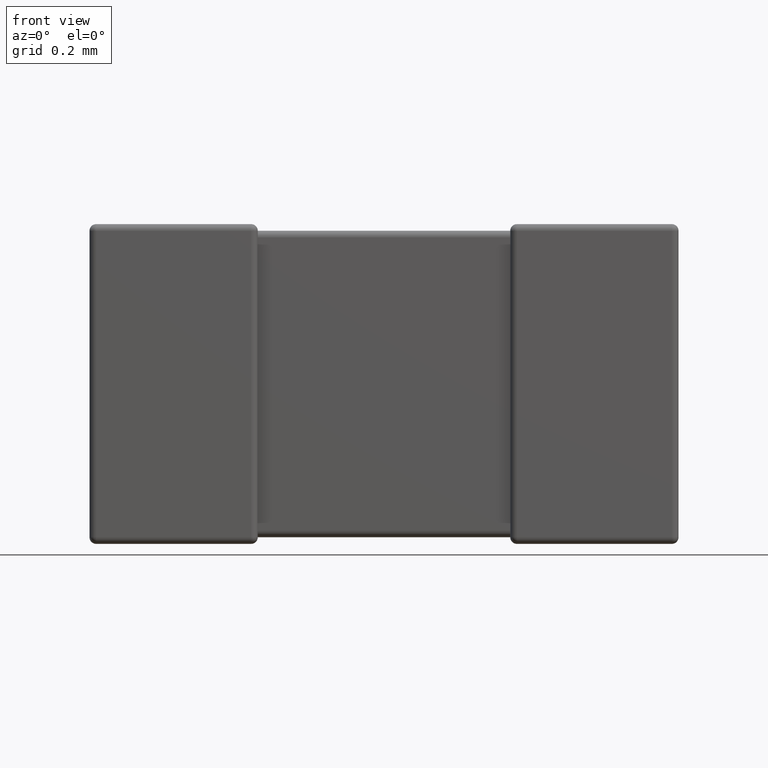
[diagram: clean part render]
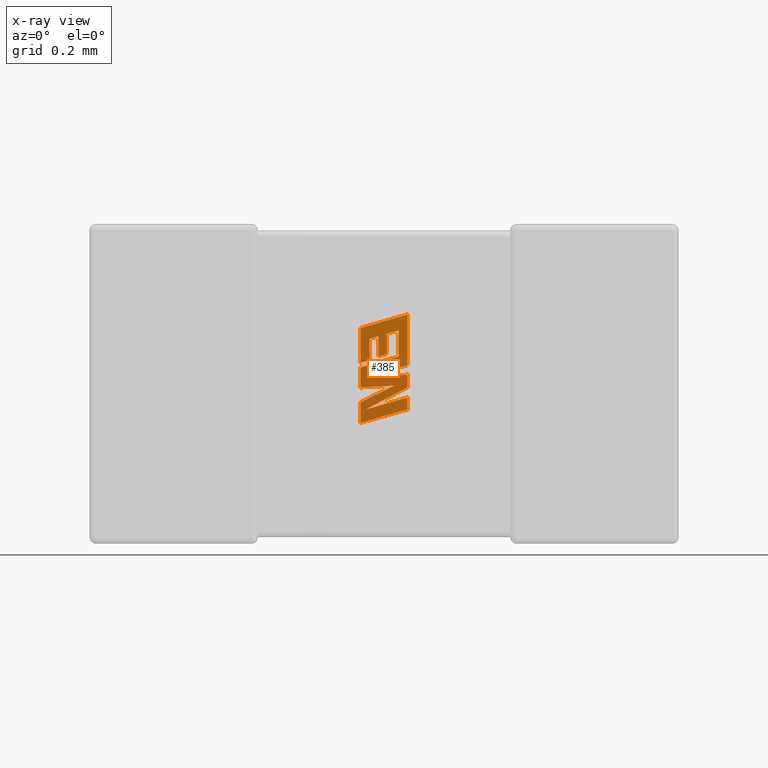
[diagram: x-ray — body ghosted, one internal face saturated and labeled with its STEP entity id]
A machine part, front view, then the same camera in x-ray: the body is ghosted and one INTERNAL B-rep face — a face not visible from any outside direction — is saturated and labeled: STEP entity #385.
In plain terms, the highlighted planar face has unit normal (0, -1, 0).
Its self-contained STEP definition (entity closure, byte-faithful):
#4 = ORIENTED_EDGE ( 'NONE', *, *, #4164, .F. ) ;
#6 = AXIS2_PLACEMENT_3D ( 'NONE', #1069, #645, #3156 ) ;
#31 = VERTEX_POINT ( 'NONE', #4148 ) ;
#48 = CARTESIAN_POINT ( 'NONE',  ( 0.9450000000000022826, 0.8502400000000001068, -0.5506991025592369304 ) ) ;
#61 = VERTEX_POINT ( 'NONE', #263 ) ;
#100 = VERTEX_POINT ( 'NONE', #1389 ) ;
#134 = CARTESIAN_POINT ( 'NONE',  ( 0.8053395720805847091, 0.8502400000000001068, -0.4120773737585498031 ) ) ;
#139 = LINE ( 'NONE', #4451, #259 ) ;
#176 = VERTEX_POINT ( 'NONE', #134 ) ;
#194 = EDGE_LOOP ( 'NONE', ( #1203, #3507, #655, #2173, #4394, #485, #3022, #4112, #4640, #1080, #3722, #2072, #4098, #4577, #957, #3760, #1007, #3667, #360, #3411, #4, #2482, #1772 ) ) ;
#223 = DIRECTION ( 'NONE',  ( 0.000000000000000000, 0.000000000000000000, 1.000000000000000000 ) ) ;
#239 = DIRECTION ( 'NONE',  ( 0.000000000000000000, 0.000000000000000000, -1.000000000000000000 ) ) ;
#259 = VECTOR ( 'NONE', #1586, 1000.000000000000000 ) ;
#261 = LINE ( 'NONE', #977, #3511 ) ;
#263 = CARTESIAN_POINT ( 'NONE',  ( 0.8053395720805847091, 0.8502400000000001068, -0.5295983915511064399 ) ) ;
#297 = EDGE_CURVE ( 'NONE', #837, #2116, #3899, .T. ) ;
#318 = CARTESIAN_POINT ( 'NONE',  ( 0.8319232174250339451, 0.8502400000000001068, -0.3408963415075652037 ) ) ;
#359 = CARTESIAN_POINT ( 'NONE',  ( 0.8053395720805847091, 0.8502400000000001068, -0.4260076608447047608 ) ) ;
#360 = ORIENTED_EDGE ( 'NONE', *, *, #3505, .F. ) ;
#385 = ADVANCED_FACE ( 'NONE', ( #1758 ), #3530, .T. ) ;
#445 = EDGE_CURVE ( 'NONE', #31, #1337, #2624, .T. ) ;
#485 = ORIENTED_EDGE ( 'NONE', *, *, #2514, .F. ) ;
#542 = VECTOR ( 'NONE', #1835, 1000.000000000000227 ) ;
#552 = CARTESIAN_POINT ( 'NONE',  ( 0.9450000000000022826, 0.8502400000000001068, -0.4851328202125018696 ) ) ;
#645 = DIRECTION ( 'NONE',  ( 0.000000000000000000, -1.000000000000000000, 0.000000000000000000 ) ) ;
#647 = DIRECTION ( 'NONE',  ( 0.000000000000000000, 0.000000000000000000, 1.000000000000000000 ) ) ;
#651 = CARTESIAN_POINT ( 'NONE',  ( 0.9450000000000022826, 0.8502400000000001068, -0.4479005991159001332 ) ) ;
#655 = ORIENTED_EDGE ( 'NONE', *, *, #3923, .F. ) ;
#706 = LINE ( 'NONE', #4648, #2542 ) ;
#720 = VECTOR ( 'NONE', #2361, 1000.000000000000114 ) ;
#733 = CARTESIAN_POINT ( 'NONE',  ( 0.8053395720805847091, 0.8502400000000001068, -0.4854840960870434041 ) ) ;
#837 = VERTEX_POINT ( 'NONE', #1390 ) ;
#849 = EDGE_CURVE ( 'NONE', #3197, #2169, #1951, .T. ) ;
#890 = LINE ( 'NONE', #3047, #4371 ) ;
#921 = VECTOR ( 'NONE', #3538, 1000.000000000000000 ) ;
#957 = ORIENTED_EDGE ( 'NONE', *, *, #2440, .F. ) ;
#977 = CARTESIAN_POINT ( 'NONE',  ( 0.8206639919705974728, 0.8502400000000001068, -0.4548699891798935746 ) ) ;
#1007 = ORIENTED_EDGE ( 'NONE', *, *, #1694, .F. ) ;
#1010 = EDGE_CURVE ( 'NONE', #2183, #4052, #2768, .T. ) ;
#1020 = CARTESIAN_POINT ( 'NONE',  ( 0.9051147762025542054, 0.8502400000000001068, -0.4801131553883827285 ) ) ;
#1036 = CARTESIAN_POINT ( 'NONE',  ( 0.9184295188700125623, 0.8502400000000001068, -0.3935013928317807608 ) ) ;
#1037 = EDGE_CURVE ( 'NONE', #4364, #100, #2144, .T. ) ;
#1069 = CARTESIAN_POINT ( 'NONE',  ( 0.007753220357564218589, 0.8502400000000001068, 0.002149546054919077975 ) ) ;
#1080 = ORIENTED_EDGE ( 'NONE', *, *, #445, .F. ) ;
#1109 = LINE ( 'NONE', #4338, #1177 ) ;
#1128 = EDGE_CURVE ( 'NONE', #2121, #1653, #1109, .T. ) ;
#1160 = EDGE_CURVE ( 'NONE', #176, #31, #4465, .T. ) ;
#1177 = VECTOR ( 'NONE', #2931, 1000.000000000000114 ) ;
#1194 = EDGE_CURVE ( 'NONE', #1205, #1563, #3034, .T. ) ;
#1203 = ORIENTED_EDGE ( 'NONE', *, *, #3793, .F. ) ;
#1205 = VERTEX_POINT ( 'NONE', #552 ) ;
#1237 = DIRECTION ( 'NONE',  ( -0.8843386665637650301, 0.000000000000000000, -0.4668459304955136502 ) ) ;
#1265 = CARTESIAN_POINT ( 'NONE',  ( 0.8837184572183794939, 0.8502400000000001068, -0.3259715192315810195 ) ) ;
#1318 = DIRECTION ( 'NONE',  ( 0.000000000000000000, 0.000000000000000000, -1.000000000000000000 ) ) ;
#1337 = VERTEX_POINT ( 'NONE', #2823 ) ;
#1387 = LINE ( 'NONE', #2452, #4377 ) ;
#1389 = CARTESIAN_POINT ( 'NONE',  ( 0.8319232174250339451, 0.8502400000000001068, -0.4045270596383866990 ) ) ;
#1390 = CARTESIAN_POINT ( 'NONE',  ( 0.9051147762025542054, 0.8502400000000001068, -0.4801131553883827285 ) ) ;
#1407 = CARTESIAN_POINT ( 'NONE',  ( 0.8837184572183794939, 0.8502400000000001068, -0.3859069148949116901 ) ) ;
#1455 = EDGE_CURVE ( 'NONE', #2169, #1954, #261, .T. ) ;
#1493 = CARTESIAN_POINT ( 'NONE',  ( 0.8837184572183794939, 0.8502400000000001068, -0.3859069148949116901 ) ) ;
#1499 = CARTESIAN_POINT ( 'NONE',  ( 0.9450000000000022826, 0.8502400000000001068, -0.4479005991159001332 ) ) ;
#1528 = CARTESIAN_POINT ( 'NONE',  ( 0.8053395720805847091, 0.8502400000000001068, -0.3089009299571303102 ) ) ;
#1544 = DIRECTION ( 'NONE',  ( -0.9601763114327565019, 0.000000000000000000, -0.2793947940878393488 ) ) ;
#1563 = VERTEX_POINT ( 'NONE', #2470 ) ;
#1579 = CARTESIAN_POINT ( 'NONE',  ( 0.8319232174250339451, 0.8502400000000001068, -0.3408963415075652037 ) ) ;
#1586 = DIRECTION ( 'NONE',  ( 0.000000000000000000, 0.000000000000000000, 1.000000000000000000 ) ) ;
#1653 = VERTEX_POINT ( 'NONE', #3367 ) ;
#1694 = EDGE_CURVE ( 'NONE', #2541, #2183, #2769, .T. ) ;
#1712 = VECTOR ( 'NONE', #1237, 1000.000000000000114 ) ;
#1724 = CARTESIAN_POINT ( 'NONE',  ( 0.8579000349360555999, 0.8502400000000001068, -0.3932814230507400421 ) ) ;
#1728 = DIRECTION ( 'NONE',  ( 0.000000000000000000, 0.000000000000000000, -1.000000000000000000 ) ) ;
#1758 = FACE_OUTER_BOUND ( 'NONE', #194, .T. ) ;
#1772 = ORIENTED_EDGE ( 'NONE', *, *, #3951, .F. ) ;
#1835 = DIRECTION ( 'NONE',  ( 0.9610029908221285888, 0.000000000000000000, 0.2765379750249931656 ) ) ;
#1844 = LINE ( 'NONE', #2926, #2289 ) ;
#1884 = LINE ( 'NONE', #2229, #2955 ) ;
#1909 = CARTESIAN_POINT ( 'NONE',  ( 0.8579000349360555999, 0.8502400000000001068, -0.3333375343456604356 ) ) ;
#1951 = LINE ( 'NONE', #2336, #720 ) ;
#1954 = VERTEX_POINT ( 'NONE', #1499 ) ;
#2064 = EDGE_CURVE ( 'NONE', #3406, #4471, #3592, .T. ) ;
#2072 = ORIENTED_EDGE ( 'NONE', *, *, #4248, .F. ) ;
#2096 = EDGE_CURVE ( 'NONE', #1337, #3197, #4203, .T. ) ;
#2104 = CARTESIAN_POINT ( 'NONE',  ( 0.8579000349360555999, 0.8502400000000001068, -0.3932814230507400421 ) ) ;
#2115 = CARTESIAN_POINT ( 'NONE',  ( 0.9450000000000022826, 0.8502400000000001068, -0.3943103549475528435 ) ) ;
#2116 = VERTEX_POINT ( 'NONE', #733 ) ;
#2121 = VERTEX_POINT ( 'NONE', #48 ) ;
#2144 = LINE ( 'NONE', #318, #3596 ) ;
#2158 = DIRECTION ( 'NONE',  ( 0.9611542233438712390, 0.000000000000000000, 0.2760118818968482213 ) ) ;
#2169 = VERTEX_POINT ( 'NONE', #2952 ) ;
#2173 = ORIENTED_EDGE ( 'NONE', *, *, #3350, .F. ) ;
#2183 = VERTEX_POINT ( 'NONE', #1493 ) ;
#2212 = VECTOR ( 'NONE', #239, 1000.000000000000000 ) ;
#2226 = CARTESIAN_POINT ( 'NONE',  ( 0.9184295188700125623, 0.8502400000000001068, -0.3160813721079296923 ) ) ;
#2229 = CARTESIAN_POINT ( 'NONE',  ( 0.8053395720805847091, 0.8502400000000001068, -0.5908525053673584493 ) ) ;
#2239 = EDGE_CURVE ( 'NONE', #4232, #4364, #1844, .T. ) ;
#2289 = VECTOR ( 'NONE', #1544, 1000.000000000000227 ) ;
#2336 = CARTESIAN_POINT ( 'NONE',  ( 0.9450000000000022826, 0.8502400000000001068, -0.4191694881637327841 ) ) ;
#2361 = DIRECTION ( 'NONE',  ( -0.9611638845408968512, 0.000000000000000000, -0.2759782365590690012 ) ) ;
#2378 = CARTESIAN_POINT ( 'NONE',  ( 0.9450000000000022826, 0.8502400000000001068, -0.4191694881637327841 ) ) ;
#2395 = CARTESIAN_POINT ( 'NONE',  ( 0.9450000000000022826, 0.8502400000000001068, -0.5152092289786281976 ) ) ;
#2418 = DIRECTION ( 'NONE',  ( -0.9617234872620624708, 0.000000000000000000, -0.2740217765953968376 ) ) ;
#2440 = EDGE_CURVE ( 'NONE', #4052, #4232, #3565, .T. ) ;
#2452 = CARTESIAN_POINT ( 'NONE',  ( 0.8053395720805847091, 0.8502400000000001068, -0.4854840960870434041 ) ) ;
#2470 = CARTESIAN_POINT ( 'NONE',  ( 0.8200652325271690080, 0.8502400000000001068, -0.5510863852632390536 ) ) ;
#2482 = ORIENTED_EDGE ( 'NONE', *, *, #297, .F. ) ;
#2514 = EDGE_CURVE ( 'NONE', #1954, #1205, #2781, .T. ) ;
#2541 = VERTEX_POINT ( 'NONE', #2802 ) ;
#2542 = VECTOR ( 'NONE', #2158, 1000.000000000000114 ) ;
#2559 = CARTESIAN_POINT ( 'NONE',  ( 0.8319232174250339451, 0.8502400000000001068, -0.4045270596383866990 ) ) ;
#2567 = VECTOR ( 'NONE', #3248, 1000.000000000000227 ) ;
#2624 = LINE ( 'NONE', #1528, #542 ) ;
#2655 = VERTEX_POINT ( 'NONE', #4113 ) ;
#2696 = CARTESIAN_POINT ( 'NONE',  ( 0.8053395720805847091, 0.8502400000000001068, -0.4120773737585498031 ) ) ;
#2739 = DIRECTION ( 'NONE',  ( 0.000000000000000000, 0.000000000000000000, -1.000000000000000000 ) ) ;
#2768 = LINE ( 'NONE', #1407, #3218 ) ;
#2769 = LINE ( 'NONE', #1265, #3916 ) ;
#2781 = LINE ( 'NONE', #651, #2212 ) ;
#2802 = CARTESIAN_POINT ( 'NONE',  ( 0.8837184572183794939, 0.8502400000000001068, -0.3259715192315810195 ) ) ;
#2823 = CARTESIAN_POINT ( 'NONE',  ( 0.9450000000000022826, 0.8502400000000001068, -0.2687122809135727430 ) ) ;
#2926 = CARTESIAN_POINT ( 'NONE',  ( 0.8579000349360555999, 0.8502400000000001068, -0.3333375343456604356 ) ) ;
#2931 = DIRECTION ( 'NONE',  ( -0.9610674221107078363, 0.000000000000000000, -0.2763139702539094689 ) ) ;
#2952 = CARTESIAN_POINT ( 'NONE',  ( 0.8206639919705974728, 0.8502400000000001068, -0.4548699891798935746 ) ) ;
#2955 = VECTOR ( 'NONE', #3280, 1000.000000000000000 ) ;
#3022 = ORIENTED_EDGE ( 'NONE', *, *, #1455, .F. ) ;
#3034 = LINE ( 'NONE', #3455, #1712 ) ;
#3047 = CARTESIAN_POINT ( 'NONE',  ( 0.8053395720805847091, 0.8502400000000001068, -0.5295983915511064399 ) ) ;
#3124 = DIRECTION ( 'NONE',  ( 0.9610853065513847993, 0.000000000000000000, 0.2762517575166369976 ) ) ;
#3135 = DIRECTION ( 'NONE',  ( 0.9984327301130250243, 0.000000000000000000, 0.05596501978067342647 ) ) ;
#3156 = DIRECTION ( 'NONE',  ( 0.000000000000000000, 0.000000000000000000, -1.000000000000000000 ) ) ;
#3197 = VERTEX_POINT ( 'NONE', #2378 ) ;
#3218 = VECTOR ( 'NONE', #4609, 1000.000000000000227 ) ;
#3248 = DIRECTION ( 'NONE',  ( -0.9985542843760948362, 0.000000000000000000, -0.05375259206908061804 ) ) ;
#3263 = VECTOR ( 'NONE', #4000, 1000.000000000000000 ) ;
#3280 = DIRECTION ( 'NONE',  ( 0.000000000000000000, 0.000000000000000000, 1.000000000000000000 ) ) ;
#3299 = EDGE_CURVE ( 'NONE', #4259, #2541, #3935, .T. ) ;
#3350 = EDGE_CURVE ( 'NONE', #1563, #2655, #706, .T. ) ;
#3367 = CARTESIAN_POINT ( 'NONE',  ( 0.8053395720805847091, 0.8502400000000001068, -0.5908525053673584493 ) ) ;
#3397 = DIRECTION ( 'NONE',  ( 0.8958676361826828360, 0.000000000000000000, 0.4443210308329466063 ) ) ;
#3406 = VERTEX_POINT ( 'NONE', #4005 ) ;
#3411 = ORIENTED_EDGE ( 'NONE', *, *, #2064, .F. ) ;
#3455 = CARTESIAN_POINT ( 'NONE',  ( 0.9450000000000022826, 0.8502400000000001068, -0.4851328202125018696 ) ) ;
#3505 = EDGE_CURVE ( 'NONE', #4471, #4259, #139, .T. ) ;
#3507 = ORIENTED_EDGE ( 'NONE', *, *, #1128, .F. ) ;
#3511 = VECTOR ( 'NONE', #3135, 1000.000000000000114 ) ;
#3530 = PLANE ( 'NONE',  #6 ) ;
#3538 = DIRECTION ( 'NONE',  ( 0.000000000000000000, 0.000000000000000000, 1.000000000000000000 ) ) ;
#3565 = LINE ( 'NONE', #1724, #921 ) ;
#3592 = LINE ( 'NONE', #359, #3851 ) ;
#3596 = VECTOR ( 'NONE', #3854, 1000.000000000000000 ) ;
#3667 = ORIENTED_EDGE ( 'NONE', *, *, #3299, .F. ) ;
#3722 = ORIENTED_EDGE ( 'NONE', *, *, #1160, .F. ) ;
#3760 = ORIENTED_EDGE ( 'NONE', *, *, #1010, .F. ) ;
#3793 = EDGE_CURVE ( 'NONE', #1653, #61, #1884, .T. ) ;
#3813 = LINE ( 'NONE', #2395, #4461 ) ;
#3845 = VECTOR ( 'NONE', #1728, 1000.000000000000000 ) ;
#3851 = VECTOR ( 'NONE', #3124, 1000.000000000000000 ) ;
#3854 = DIRECTION ( 'NONE',  ( 0.000000000000000000, 0.000000000000000000, -1.000000000000000000 ) ) ;
#3899 = LINE ( 'NONE', #1020, #2567 ) ;
#3916 = VECTOR ( 'NONE', #1318, 1000.000000000000000 ) ;
#3923 = EDGE_CURVE ( 'NONE', #2655, #2121, #3813, .T. ) ;
#3935 = LINE ( 'NONE', #4624, #4202 ) ;
#3951 = EDGE_CURVE ( 'NONE', #61, #837, #890, .T. ) ;
#4000 = DIRECTION ( 'NONE',  ( -0.9619530280415479195, 0.000000000000000000, -0.2732148821746301914 ) ) ;
#4005 = CARTESIAN_POINT ( 'NONE',  ( 0.8053395720805847091, 0.8502400000000001068, -0.4260076608447047608 ) ) ;
#4052 = VERTEX_POINT ( 'NONE', #2104 ) ;
#4098 = ORIENTED_EDGE ( 'NONE', *, *, #1037, .F. ) ;
#4112 = ORIENTED_EDGE ( 'NONE', *, *, #849, .F. ) ;
#4113 = CARTESIAN_POINT ( 'NONE',  ( 0.9450000000000022826, 0.8502400000000001068, -0.5152092289786281976 ) ) ;
#4148 = CARTESIAN_POINT ( 'NONE',  ( 0.8053395720805847091, 0.8502400000000001068, -0.3089009299571303102 ) ) ;
#4164 = EDGE_CURVE ( 'NONE', #2116, #3406, #1387, .T. ) ;
#4202 = VECTOR ( 'NONE', #2418, 1000.000000000000000 ) ;
#4203 = LINE ( 'NONE', #2115, #3845 ) ;
#4232 = VERTEX_POINT ( 'NONE', #1909 ) ;
#4248 = EDGE_CURVE ( 'NONE', #100, #176, #4344, .T. ) ;
#4259 = VERTEX_POINT ( 'NONE', #2226 ) ;
#4338 = CARTESIAN_POINT ( 'NONE',  ( 0.9450000000000022826, 0.8502400000000001068, -0.5506991025592369304 ) ) ;
#4344 = LINE ( 'NONE', #2559, #3263 ) ;
#4364 = VERTEX_POINT ( 'NONE', #1579 ) ;
#4371 = VECTOR ( 'NONE', #3397, 1000.000000000000227 ) ;
#4377 = VECTOR ( 'NONE', #647, 1000.000000000000000 ) ;
#4394 = ORIENTED_EDGE ( 'NONE', *, *, #1194, .F. ) ;
#4451 = CARTESIAN_POINT ( 'NONE',  ( 0.9184295188700125623, 0.8502400000000001068, -0.3935013928317807608 ) ) ;
#4461 = VECTOR ( 'NONE', #2739, 1000.000000000000000 ) ;
#4465 = LINE ( 'NONE', #2696, #4647 ) ;
#4471 = VERTEX_POINT ( 'NONE', #1036 ) ;
#4577 = ORIENTED_EDGE ( 'NONE', *, *, #2239, .F. ) ;
#4609 = DIRECTION ( 'NONE',  ( -0.9615454294334448981, 0.000000000000000000, -0.2746459304917006072 ) ) ;
#4624 = CARTESIAN_POINT ( 'NONE',  ( 0.9184295188700125623, 0.8502400000000001068, -0.3160813721079296923 ) ) ;
#4640 = ORIENTED_EDGE ( 'NONE', *, *, #2096, .F. ) ;
#4647 = VECTOR ( 'NONE', #223, 1000.000000000000000 ) ;
#4648 = CARTESIAN_POINT ( 'NONE',  ( 0.8200652325271690080, 0.8502400000000001068, -0.5510863852632390536 ) ) ;